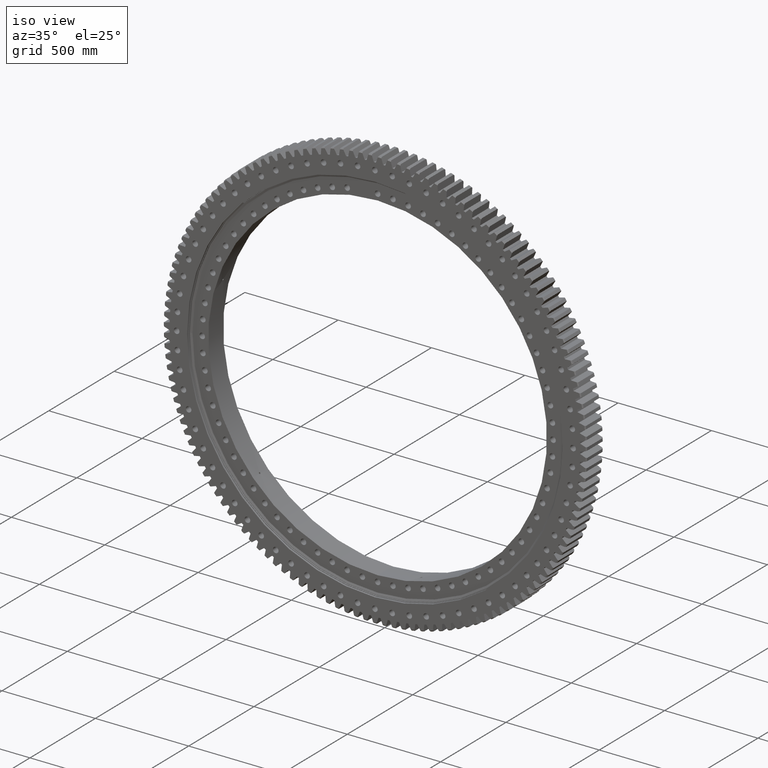
[diagram: clean part render]
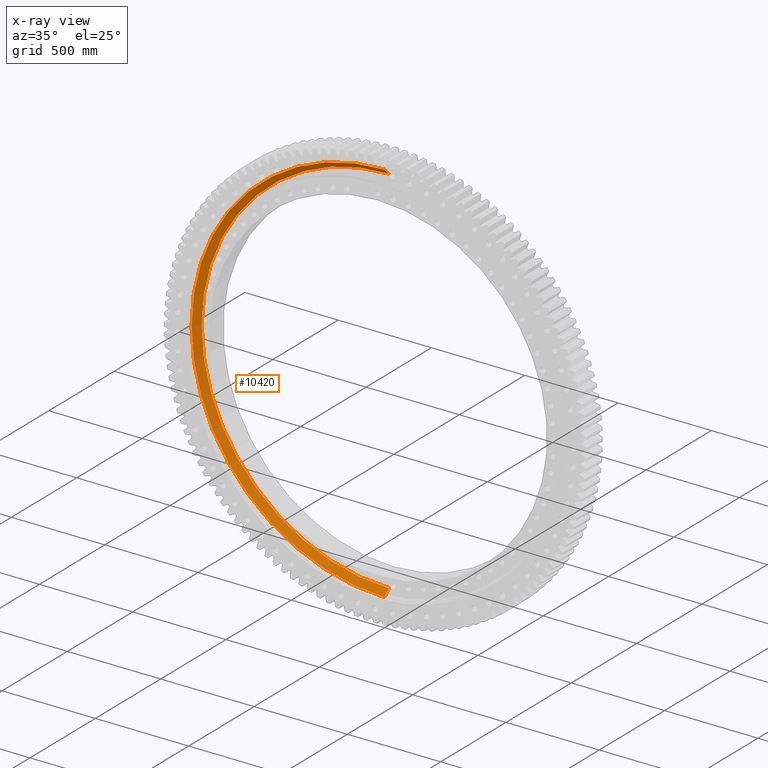
[diagram: x-ray — body ghosted, one internal face saturated and labeled with its STEP entity id]
A machine part, iso view, then the same camera in x-ray: the body is ghosted and one INTERNAL B-rep face — a face not visible from any outside direction — is saturated and labeled: STEP entity #10420.
In plain terms, the highlighted conical surface has half-angle 45 deg.
Its self-contained STEP definition (entity closure, byte-faithful):
#3607 = CIRCLE ( 'NONE', #37131, 1003.500000000000100 ) ;
#5564 = LINE ( 'NONE', #22709, #16497 ) ;
#5916 = DIRECTION ( 'NONE',  ( 8.659560562354918100E-017, -0.7071067811865489100, 0.7071067811865462400 ) ) ;
#7717 = VERTEX_POINT ( 'NONE', #11529 ) ;
#8295 = EDGE_CURVE ( 'NONE', #28943, #7717, #8946, .T. ) ;
#8946 = CIRCLE ( 'NONE', #14560, 1035.648232278140500 ) ;
#10132 = CARTESIAN_POINT ( 'NONE',  ( 1.248618177823204300E-013, 32.85533905932721400, 1003.500000000000100 ) ) ;
#10420 = ADVANCED_FACE ( 'NONE', ( #35349 ), #33254, .F. ) ;
#10752 = EDGE_LOOP ( 'NONE', ( #30536, #25204, #24690, #21890 ) ) ;
#11529 = CARTESIAN_POINT ( 'NONE',  ( 0.0000000000000000000, 0.7071067811865311400, 1035.648232278140500 ) ) ;
#11530 = DIRECTION ( 'NONE',  ( -0.0000000000000000000, 1.000000000000000000, -0.0000000000000000000 ) ) ;
#12425 = VECTOR ( 'NONE', #5916, 999.9999999999998900 ) ;
#13006 = AXIS2_PLACEMENT_3D ( 'NONE', #16175, #36097, #19509 ) ;
#14560 = AXIS2_PLACEMENT_3D ( 'NONE', #37931, #18000, #41222 ) ;
#16175 = CARTESIAN_POINT ( 'NONE',  ( 0.0000000000000000000, 32.85533905932721400, 0.0000000000000000000 ) ) ;
#16497 = VECTOR ( 'NONE', #28972, 999.9999999999998900 ) ;
#18000 = DIRECTION ( 'NONE',  ( -0.0000000000000000000, 1.000000000000000000, -0.0000000000000000000 ) ) ;
#19002 = CARTESIAN_POINT ( 'NONE',  ( 1.228933062944369100E-013, 32.85533905932721400, 1003.500000000000100 ) ) ;
#19132 = EDGE_CURVE ( 'NONE', #38572, #28943, #5564, .T. ) ;
#19509 = DIRECTION ( 'NONE',  ( 0.0000000000000000000, 0.0000000000000000000, -1.000000000000000000 ) ) ;
#21214 = LINE ( 'NONE', #19002, #12425 ) ;
#21890 = ORIENTED_EDGE ( 'NONE', *, *, #19132, .F. ) ;
#22709 = CARTESIAN_POINT ( 'NONE',  ( 0.0000000000000000000, 32.85533905932721400, -1003.500000000000100 ) ) ;
#23276 = EDGE_CURVE ( 'NONE', #25682, #7717, #21214, .T. ) ;
#23989 = CARTESIAN_POINT ( 'NONE',  ( 0.0000000000000000000, 32.85533905932721400, -1003.500000000000100 ) ) ;
#24690 = ORIENTED_EDGE ( 'NONE', *, *, #8295, .F. ) ;
#25204 = ORIENTED_EDGE ( 'NONE', *, *, #23276, .T. ) ;
#25682 = VERTEX_POINT ( 'NONE', #10132 ) ;
#28943 = VERTEX_POINT ( 'NONE', #30903 ) ;
#28972 = DIRECTION ( 'NONE',  ( 0.0000000000000000000, -0.7071067811865489100, -0.7071067811865462400 ) ) ;
#30536 = ORIENTED_EDGE ( 'NONE', *, *, #31210, .T. ) ;
#30903 = CARTESIAN_POINT ( 'NONE',  ( 1.268303292702039600E-013, 0.7071067811865311400, -1035.648232278140500 ) ) ;
#31210 = EDGE_CURVE ( 'NONE', #38572, #25682, #3607, .T. ) ;
#31427 = CARTESIAN_POINT ( 'NONE',  ( 0.0000000000000000000, 32.85533905932721400, 0.0000000000000000000 ) ) ;
#33254 = CONICAL_SURFACE ( 'NONE', #13006, 1003.500000000000100, 0.7853981633974465000 ) ;
#34761 = DIRECTION ( 'NONE',  ( 0.0000000000000000000, 0.0000000000000000000, 1.000000000000000000 ) ) ;
#35349 = FACE_OUTER_BOUND ( 'NONE', #10752, .T. ) ;
#36097 = DIRECTION ( 'NONE',  ( 0.0000000000000000000, -1.000000000000000000, 0.0000000000000000000 ) ) ;
#37131 = AXIS2_PLACEMENT_3D ( 'NONE', #31427, #11530, #34761 ) ;
#37931 = CARTESIAN_POINT ( 'NONE',  ( 0.0000000000000000000, 0.7071067811865311400, 0.0000000000000000000 ) ) ;
#38572 = VERTEX_POINT ( 'NONE', #23989 ) ;
#41222 = DIRECTION ( 'NONE',  ( 0.0000000000000000000, 0.0000000000000000000, 1.000000000000000000 ) ) ;